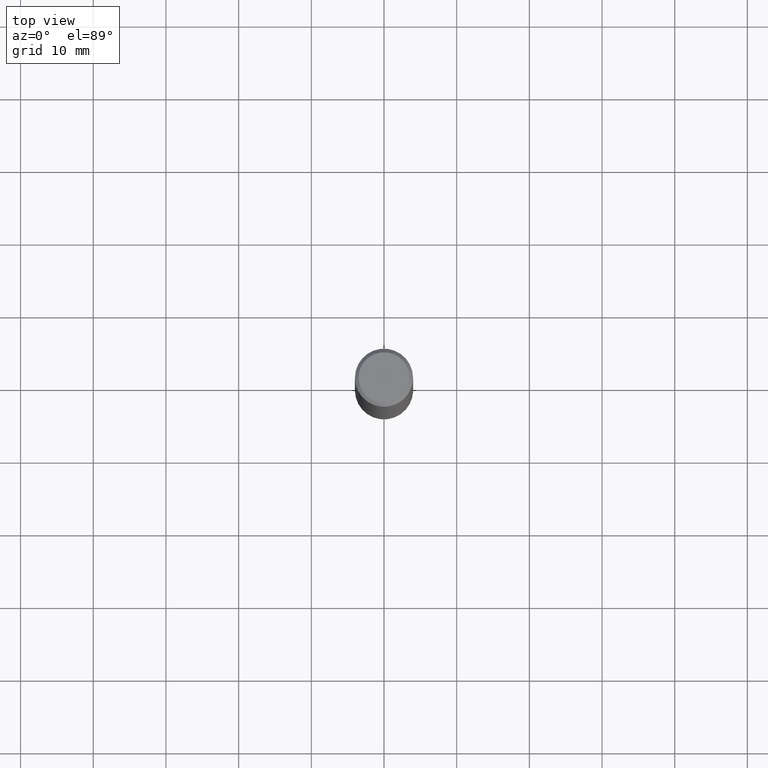
[diagram: clean part render]
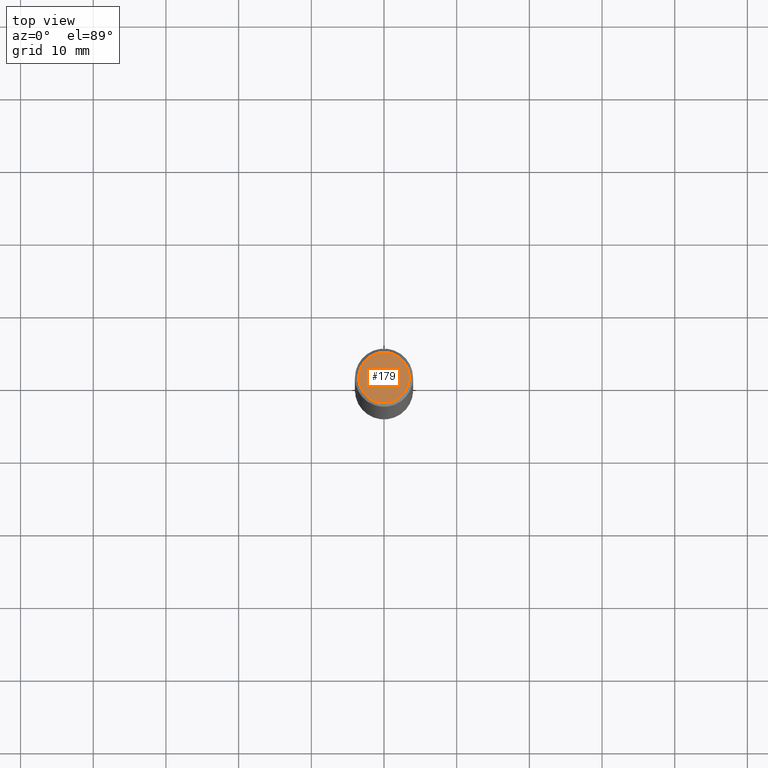
[diagram: same view with one face highlighted and labeled with its STEP entity id]
A machine part, top view. The second image highlights one B-rep face of the part: STEP entity #179.
In plain terms, the highlighted planar face has unit normal (0, -0, -1).
Its self-contained STEP definition (entity closure, byte-faithful):
#6 = DIRECTION ( 'NONE',  ( -1.000000000000000000, 6.982962677686265922E-15, -4.876176775795935793E-29 ) ) ;
#8 = CARTESIAN_POINT ( 'NONE',  ( 9.601573681818585173E-16, 0.1374999999999995670, -4.779444278458807216E-16 ) ) ;
#28 = VERTEX_POINT ( 'NONE', #222 ) ;
#75 = EDGE_CURVE ( 'NONE', #28, #196, #94, .T. ) ;
#86 = CIRCLE ( 'NONE', #278, 0.1374999999999995670 ) ;
#93 = FACE_OUTER_BOUND ( 'NONE', #111, .T. ) ;
#94 = CIRCLE ( 'NONE', #112, 0.1374999999999995670 ) ;
#111 = EDGE_LOOP ( 'NONE', ( #361, #134 ) ) ;
#112 = AXIS2_PLACEMENT_3D ( 'NONE', #276, #251, #226 ) ;
#134 = ORIENTED_EDGE ( 'NONE', *, *, #193, .T. ) ;
#150 = PLANE ( 'NONE',  #352 ) ;
#179 = ADVANCED_FACE ( 'NONE', ( #93 ), #150, .F. ) ;
#193 = EDGE_CURVE ( 'NONE', #196, #28, #86, .T. ) ;
#196 = VERTEX_POINT ( 'NONE', #348 ) ;
#208 = CARTESIAN_POINT ( 'NONE',  ( -1.043851414335219820E-46, 1.490343170380447200E-32, 4.268512490100411279E-18 ) ) ;
#222 = CARTESIAN_POINT ( 'NONE',  ( -0.1374999999999995670, 9.950721815702897719E-16, 4.268512490093574228E-18 ) ) ;
#226 = DIRECTION ( 'NONE',  ( 1.000000000000000000, -6.982962677686267499E-15, 4.876173381029115737E-29 ) ) ;
#234 = DIRECTION ( 'NONE',  ( 2.438088387897960049E-29, -3.491481338843145188E-15, -1.000000000000000000 ) ) ;
#251 = DIRECTION ( 'NONE',  ( -2.445468806185136597E-29, 3.491481338843145583E-15, 1.000000000000000000 ) ) ;
#276 = CARTESIAN_POINT ( 'NONE',  ( -1.043851414335219820E-46, 1.490343170380447200E-32, 4.268512490100411279E-18 ) ) ;
#278 = AXIS2_PLACEMENT_3D ( 'NONE', #208, #282, #317 ) ;
#282 = DIRECTION ( 'NONE',  ( -2.445468806185136597E-29, 3.491481338843145583E-15, 1.000000000000000000 ) ) ;
#317 = DIRECTION ( 'NONE',  ( 1.000000000000000000, -6.982962677686267499E-15, 4.876173381029115737E-29 ) ) ;
#348 = CARTESIAN_POINT ( 'NONE',  ( 0.1374999999999995670, -1.046838268059729336E-15, 4.268512490107428597E-18 ) ) ;
#352 = AXIS2_PLACEMENT_3D ( 'NONE', #8, #234, #6 ) ;
#361 = ORIENTED_EDGE ( 'NONE', *, *, #75, .T. ) ;